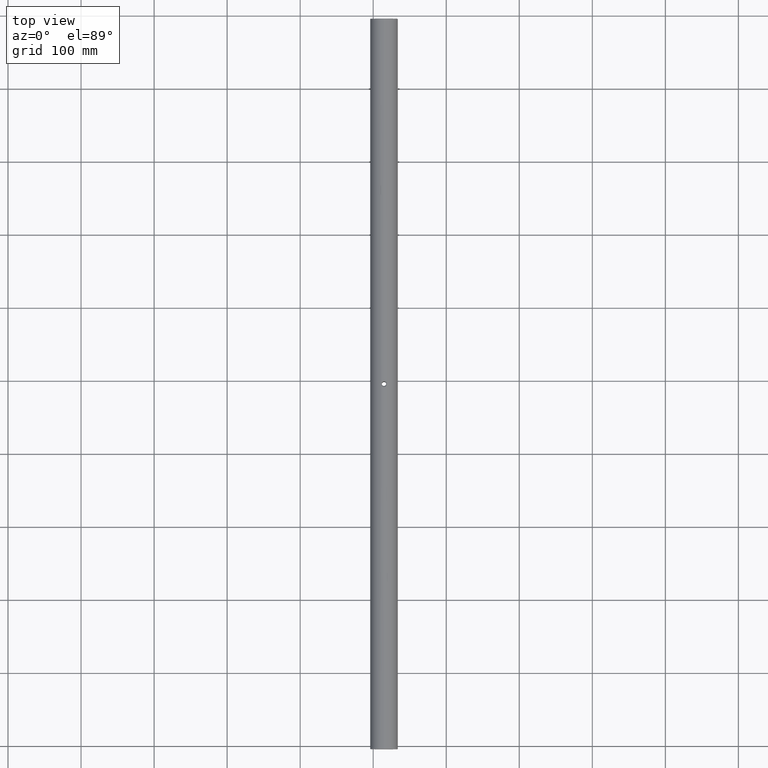
[diagram: clean part render]
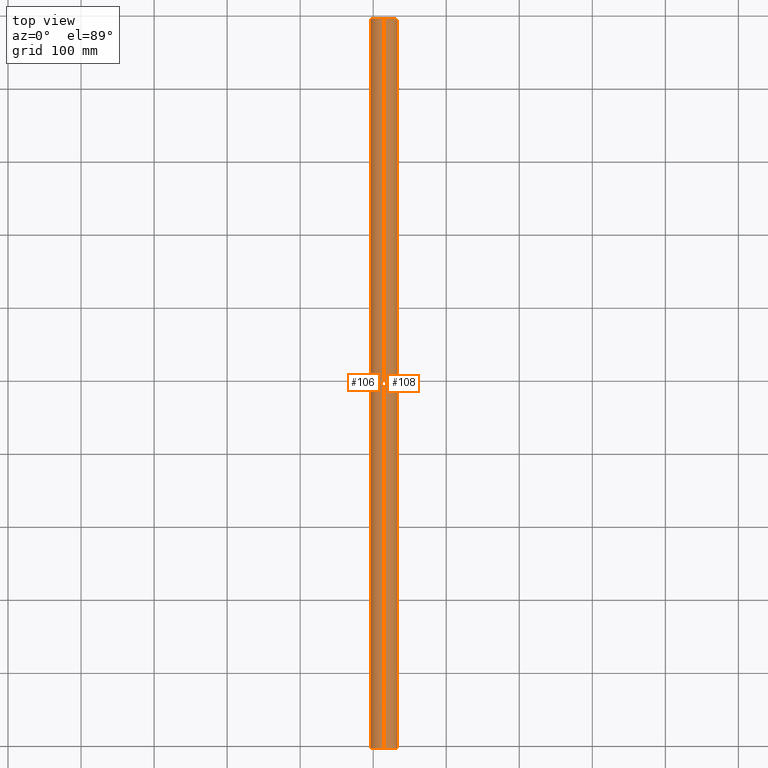
[diagram: same view with one multi-face feature highlighted, each face labeled with its STEP entity id]
A machine part, top view. The highlighted faces form ONE feature: a constant-radius fillet chain: 2 tangent blend faces with common blend radius 19 mm. The faces share edges in the B-rep.
Their STEP definitions:
[1] entity #108 (Cylinder):
#5 = CARTESIAN_POINT ( 'NONE',  ( -81.52612773688034054, -3.217498801581724077, 381.3638222746528754 ) ) ;
#7 = ORIENTED_EDGE ( 'NONE', *, *, #139, .T. ) ;
#11 = CARTESIAN_POINT ( 'NONE',  ( -84.69972560880194123, -8.430702186240790041, 418.9944016194976939 ) ) ;
#17 = CARTESIAN_POINT ( 'NONE',  ( -82.64087668775829343, -1.167056617506569971, 381.1759880288403792 ) ) ;
#21 = CARTESIAN_POINT ( 'NONE',  ( -83.24438980785724596, -7.856924346119599889, 381.1025380199827737 ) ) ;
#26 = CARTESIAN_POINT ( 'NONE',  ( -81.41341497436532393, -4.524701080299160516, 418.6133848591761648 ) ) ;
#42 = CARTESIAN_POINT ( 'NONE',  ( -81.52508446630257311, -5.300719478809650553, 381.3640301049963455 ) ) ;
#47 = CARTESIAN_POINT ( 'NONE',  ( -82.64087668775827922, -1.167056617506570415, 418.8240119711596208 ) ) ;
#57 = CARTESIAN_POINT ( 'NONE',  ( -85.22679983354142053, -0.06133999167429866894, 419.0000000000000568 ) ) ;
#61 = ORIENTED_EDGE ( 'NONE', *, *, #865, .F. ) ;
#64 = CARTESIAN_POINT ( 'NONE',  ( -85.22679983354142053, 495.2386600083257235, 381.0000000000000000 ) ) ;
#65 = CARTESIAN_POINT ( 'NONE',  ( -81.41341497436532393, -4.261339991674277350, 381.3866151408238920 ) ) ;
#83 = CARTESIAN_POINT ( 'NONE',  ( -82.14497683168241338, -1.778754477084883101, 381.2511338613114162 ) ) ;
#88 = ORIENTED_EDGE ( 'NONE', *, *, #723, .F. ) ;
#91 = CARTESIAN_POINT ( 'NONE',  ( -83.24199987212081453, -0.6676668308104372063, 381.1028212990075872 ) ) ;
#95 = CARTESIAN_POINT ( 'NONE',  ( -85.22679983354142053, -8.461339991674268646, 419.0000000000000568 ) ) ;
#99 = CARTESIAN_POINT ( 'NONE',  ( -82.63814515825626472, -7.352595677616392322, 418.8236191524364926 ) ) ;
#108 = ADVANCED_FACE ( 'NONE', ( #190 ), #906, .T. ) ;
#112 = LINE ( 'NONE', #265, #194 ) ;
#113 = VERTEX_POINT ( 'NONE', #627 ) ;
#115 = CARTESIAN_POINT ( 'NONE',  ( -85.22679983354142053, 495.7386600083257235, 400.0000000000000000 ) ) ;
#125 = CARTESIAN_POINT ( 'NONE',  ( -83.24199987212080032, -0.6676668308104377614, 418.8971787009924697 ) ) ;
#134 = LINE ( 'NONE', #769, #201 ) ;
#139 = EDGE_CURVE ( 'NONE', #113, #585, #112, .T. ) ;
#140 = DIRECTION ( 'NONE',  ( -0.0000000000000000000, -1.000000000000000000, -0.0000000000000000000 ) ) ;
#142 = ORIENTED_EDGE ( 'NONE', *, *, #386, .T. ) ;
#154 = ORIENTED_EDGE ( 'NONE', *, *, #329, .T. ) ;
#177 = AXIS2_PLACEMENT_3D ( 'NONE', #878, #221, #519 ) ;
#188 = CARTESIAN_POINT ( 'NONE',  ( -81.41341497436532393, -4.261339991674279126, 418.6133848591761648 ) ) ;
#190 = FACE_OUTER_BOUND ( 'NONE', #272, .T. ) ;
#194 = VECTOR ( 'NONE', #402, 1000.000000000000000 ) ;
#201 = VECTOR ( 'NONE', #852, 1000.000000000000000 ) ;
#202 = CARTESIAN_POINT ( 'NONE',  ( -82.29571650229409840, -1.565921010254242685, 418.7733634629371409 ) ) ;
#221 = DIRECTION ( 'NONE',  ( -0.0000000000000000000, -1.000000000000000000, -0.0000000000000000000 ) ) ;
#234 = CARTESIAN_POINT ( 'NONE',  ( -83.46511704992532543, -0.5280370949836370453, 381.0803408399271461 ) ) ;
#237 = CARTESIAN_POINT ( 'NONE',  ( -81.41341497436532393, -4.261339991674279126, 418.6133848591761648 ) ) ;
#239 = CARTESIAN_POINT ( 'NONE',  ( -82.82757549099136440, -7.533607839044134558, 418.8490779973516851 ) ) ;
#247 = VERTEX_POINT ( 'NONE', #497 ) ;
#250 = DIRECTION ( 'NONE',  ( -0.0000000000000000000, -1.000000000000000000, -0.0000000000000000000 ) ) ;
#262 = CARTESIAN_POINT ( 'NONE',  ( -81.43639937781144056, -3.732814026306843225, 418.6181352063767918 ) ) ;
#265 = CARTESIAN_POINT ( 'NONE',  ( -85.22679983354142053, 495.7386600083257235, 419.0000000000000568 ) ) ;
#272 = EDGE_LOOP ( 'NONE', ( #633, #702, #61, #698, #7, #879, #383, #142, #154, #88 ) ) ;
#274 = CARTESIAN_POINT ( 'NONE',  ( -85.22679983354142053, 495.7386600083257235, 381.0000000000000000 ) ) ;
#279 = B_SPLINE_CURVE_WITH_KNOTS ( 'NONE', 3,
 ( #188, #940, #262, #775, #410, #355, #699, #424, #202, #47, #779, #125, #862, #568, #564, #494, #845, #57 ),
 .UNSPECIFIED., .F., .F.,
 ( 4, 2, 2, 2, 2, 2, 2, 2, 4 ),
 ( 0.01002925114519557376, 0.01081737704504791807, 0.01160550294490026065, 0.01239362884475260496, 0.01318175474460494753, 0.01396988064445729011, 0.01475800654430963268, 0.01554613244416197526, 0.01633425834401431784 ),
 .UNSPECIFIED. ) ;
#281 = CARTESIAN_POINT ( 'NONE',  ( -85.22679983354142053, -0.06133999167429866894, 419.0000000000000568 ) ) ;
#285 = VERTEX_POINT ( 'NONE', #799 ) ;
#298 = B_SPLINE_CURVE_WITH_KNOTS ( 'NONE', 3,
 ( #65, #644, #937, #5, #668, #369, #374, #83, #534, #17, #661, #91, #234, #682, #744, #387, #817, #306 ),
 .UNSPECIFIED., .F., .F.,
 ( 4, 2, 2, 2, 2, 2, 2, 2, 4 ),
 ( 0.01002925114519557549, 0.01081737704504791807, 0.01160550294490026065, 0.01239362884475260496, 0.01318175474460494753, 0.01396988064445729011, 0.01475800654430963268, 0.01554613244416197526, 0.01633425834401431784 ),
 .UNSPECIFIED. ) ;
#299 = EDGE_CURVE ( 'NONE', #680, #730, #873, .T. ) ;
#306 = CARTESIAN_POINT ( 'NONE',  ( -85.22679983354142053, -0.06133999167429866894, 381.0000000000000000 ) ) ;
#311 = CARTESIAN_POINT ( 'NONE',  ( -82.82757549099136440, -7.533607839044134558, 381.1509220026484286 ) ) ;
#317 = CARTESIAN_POINT ( 'NONE',  ( -81.59285872774556481, -5.558021363143371474, 418.6494685149854149 ) ) ;
#329 = EDGE_CURVE ( 'NONE', #403, #285, #298, .T. ) ;
#332 = VERTEX_POINT ( 'NONE', #883 ) ;
#354 = EDGE_CURVE ( 'NONE', #113, #740, #932, .T. ) ;
#355 = CARTESIAN_POINT ( 'NONE',  ( -81.77187972696634688, -2.468561370532886379, 418.6834641745472823 ) ) ;
#359 = CIRCLE ( 'NONE', #631, 19.00000000000001776 ) ;
#369 = CARTESIAN_POINT ( 'NONE',  ( -81.77187972696631846, -2.468561370532884602, 381.3165358254529451 ) ) ;
#374 = CARTESIAN_POINT ( 'NONE',  ( -81.88335953815429491, -2.229144387579305775, 381.2960158925316705 ) ) ;
#378 = CARTESIAN_POINT ( 'NONE',  ( -85.22679983354142053, -503.7613399916743901, 419.0000000000000568 ) ) ;
#383 = ORIENTED_EDGE ( 'NONE', *, *, #781, .F. ) ;
#386 = EDGE_CURVE ( 'NONE', #332, #403, #500, .T. ) ;
#387 = CARTESIAN_POINT ( 'NONE',  ( -84.69707466841040855, -0.09239770115273913953, 381.0056742590844578 ) ) ;
#389 = CARTESIAN_POINT ( 'NONE',  ( -82.14309753980985818, -6.741247472261910012, 418.7485603540634429 ) ) ;
#402 = DIRECTION ( 'NONE',  ( -0.0000000000000000000, -1.000000000000000000, -0.0000000000000000000 ) ) ;
#403 = VERTEX_POINT ( 'NONE', #686 ) ;
#410 = CARTESIAN_POINT ( 'NONE',  ( -81.59279953389886941, -2.964568543362574360, 418.6494597328340888 ) ) ;
#415 = CARTESIAN_POINT ( 'NONE',  ( -85.22679983354142053, -503.7613399916743901, 400.0000000000000000 ) ) ;
#424 = CARTESIAN_POINT ( 'NONE',  ( -82.14497683168238495, -1.778754477084894647, 418.7488661386886406 ) ) ;
#433 = VECTOR ( 'NONE', #791, 1000.000000000000000 ) ;
#451 = CARTESIAN_POINT ( 'NONE',  ( -84.69972560880194123, -8.430702186240790041, 381.0055983805024198 ) ) ;
#458 = CARTESIAN_POINT ( 'NONE',  ( -84.18986350246656514, -8.312315706571794749, 381.0266011698889201 ) ) ;
#461 = CARTESIAN_POINT ( 'NONE',  ( -81.88059113652985843, -6.288202399889226690, 381.2965077447454973 ) ) ;
#465 = CARTESIAN_POINT ( 'NONE',  ( -83.93808702169893365, -8.222923423920713404, 418.9577223027167747 ) ) ;
#485 = CARTESIAN_POINT ( 'NONE',  ( -85.22679983354142053, 495.7386600083257235, 419.0000000000000568 ) ) ;
#487 = DIRECTION ( 'NONE',  ( 0.0000000000000000000, 0.0000000000000000000, -1.000000000000000000 ) ) ;
#492 = VECTOR ( 'NONE', #140, 1000.000000000000000 ) ;
#494 = CARTESIAN_POINT ( 'NONE',  ( -84.69707466841043697, -0.09239770115273915341, 418.9943257409157127 ) ) ;
#497 = CARTESIAN_POINT ( 'NONE',  ( -85.22679983354142053, -503.7613399916743901, 381.0000000000000000 ) ) ;
#500 = B_SPLINE_CURVE_WITH_KNOTS ( 'NONE', 3,
 ( #522, #736, #451, #458, #749, #605, #21, #311, #898, #828, #609, #461, #831, #550, #42, #919, #838, #700 ),
 .UNSPECIFIED., .F., .F.,
 ( 4, 2, 2, 2, 2, 2, 2, 2, 4 ),
 ( 0.003733624680294762854, 0.004520577988407363350, 0.005307531296519963845, 0.006094484604632565208, 0.006881437912745166571, 0.007668391220857769669, 0.008455344528970371032, 0.009242297837082972395, 0.01002925114519557549 ),
 .UNSPECIFIED. ) ;
#501 = LINE ( 'NONE', #485, #433 ) ;
#502 = AXIS2_PLACEMENT_3D ( 'NONE', #115, #250, #487 ) ;
#505 = EDGE_CURVE ( 'NONE', #585, #247, #359, .T. ) ;
#519 = DIRECTION ( 'NONE',  ( 0.0000000000000000000, 0.0000000000000000000, 1.000000000000000000 ) ) ;
#522 = CARTESIAN_POINT ( 'NONE',  ( -85.22679983354142053, -8.461339991674268646, 381.0000000000000000 ) ) ;
#534 = CARTESIAN_POINT ( 'NONE',  ( -82.29571650229409840, -1.565921010254241796, 381.2266365370629160 ) ) ;
#538 = CARTESIAN_POINT ( 'NONE',  ( -84.96243902164792416, -8.461339991674275751, 419.0000000000001137 ) ) ;
#550 = CARTESIAN_POINT ( 'NONE',  ( -81.59285872774556481, -5.558021363143366145, 381.3505314850146988 ) ) ;
#564 = CARTESIAN_POINT ( 'NONE',  ( -84.18753268678747759, -0.2111030241652349926, 418.9732691674435046 ) ) ;
#568 = CARTESIAN_POINT ( 'NONE',  ( -83.94119362236200743, -0.2983445582111095007, 418.9579599544148323 ) ) ;
#578 = CARTESIAN_POINT ( 'NONE',  ( -85.22679983354142053, 495.2386600083257235, 419.0000000000000568 ) ) ;
#585 = VERTEX_POINT ( 'NONE', #378 ) ;
#590 = CARTESIAN_POINT ( 'NONE',  ( -81.77082803723338600, -6.051458313143361245, 418.6832669197586370 ) ) ;
#594 = CARTESIAN_POINT ( 'NONE',  ( -82.29671814351611658, -6.957786961682561611, 418.7735023986901979 ) ) ;
#599 = CARTESIAN_POINT ( 'NONE',  ( -81.43586367851925445, -4.785232307264688068, 418.6180255036908306 ) ) ;
#605 = CARTESIAN_POINT ( 'NONE',  ( -83.46626106639050136, -7.995107640163255702, 381.0802611310913903 ) ) ;
#609 = CARTESIAN_POINT ( 'NONE',  ( -82.14309753980985818, -6.741247472261910012, 381.2514396459365571 ) ) ;
#627 = CARTESIAN_POINT ( 'NONE',  ( -85.22679983354142053, -8.461339991674268646, 419.0000000000000568 ) ) ;
#631 = AXIS2_PLACEMENT_3D ( 'NONE', #415, #690, #704 ) ;
#633 = ORIENTED_EDGE ( 'NONE', *, *, #299, .T. ) ;
#639 = VERTEX_POINT ( 'NONE', #281 ) ;
#642 = CARTESIAN_POINT ( 'NONE',  ( -81.41341497436532393, -4.261339991674279126, 418.6133848591761648 ) ) ;
#644 = CARTESIAN_POINT ( 'NONE',  ( -81.41341497436533814, -3.997586484548954822, 381.3866151408237783 ) ) ;
#661 = CARTESIAN_POINT ( 'NONE',  ( -82.83102515499486174, -0.9863390833895689935, 381.1505157249931699 ) ) ;
#668 = CARTESIAN_POINT ( 'NONE',  ( -81.59279953389886941, -2.964568543362572584, 381.3505402671659681 ) ) ;
#673 = CARTESIAN_POINT ( 'NONE',  ( -84.18986350246656514, -8.312315706571794749, 418.9733988301109093 ) ) ;
#680 = VERTEX_POINT ( 'NONE', #64 ) ;
#682 = CARTESIAN_POINT ( 'NONE',  ( -83.94119362236200743, -0.2983445582111096117, 381.0420400455853382 ) ) ;
#686 = CARTESIAN_POINT ( 'NONE',  ( -81.41341497436532393, -4.261339991674277350, 381.3866151408238920 ) ) ;
#690 = DIRECTION ( 'NONE',  ( 0.0000000000000000000, 1.000000000000000000, 0.0000000000000000000 ) ) ;
#698 = ORIENTED_EDGE ( 'NONE', *, *, #354, .F. ) ;
#699 = CARTESIAN_POINT ( 'NONE',  ( -81.88335953815429491, -2.229144387579318209, 418.7039841074685000 ) ) ;
#700 = CARTESIAN_POINT ( 'NONE',  ( -81.41341497436532393, -4.261339991674277350, 381.3866151408238920 ) ) ;
#702 = ORIENTED_EDGE ( 'NONE', *, *, #738, .T. ) ;
#704 = DIRECTION ( 'NONE',  ( 0.0000000000000000000, 0.0000000000000000000, 1.000000000000000000 ) ) ;
#723 = EDGE_CURVE ( 'NONE', #680, #285, #134, .T. ) ;
#730 = VERTEX_POINT ( 'NONE', #578 ) ;
#736 = CARTESIAN_POINT ( 'NONE',  ( -84.96243902164792416, -8.461339991674275751, 381.0000000000000568 ) ) ;
#738 = EDGE_CURVE ( 'NONE', #730, #639, #501, .T. ) ;
#740 = VERTEX_POINT ( 'NONE', #642 ) ;
#744 = CARTESIAN_POINT ( 'NONE',  ( -84.18753268678749180, -0.2111030241652349648, 381.0267308325566091 ) ) ;
#749 = CARTESIAN_POINT ( 'NONE',  ( -83.93808702169893365, -8.222923423920713404, 381.0422776972831116 ) ) ;
#769 = CARTESIAN_POINT ( 'NONE',  ( -85.22679983354142053, 495.7386600083257235, 381.0000000000000000 ) ) ;
#775 = CARTESIAN_POINT ( 'NONE',  ( -81.52612773688036896, -3.217498801581725854, 418.6361777253471814 ) ) ;
#779 = CARTESIAN_POINT ( 'NONE',  ( -82.83102515499484753, -0.9863390833895698817, 418.8494842750069438 ) ) ;
#781 = EDGE_CURVE ( 'NONE', #332, #247, #785, .T. ) ;
#785 = LINE ( 'NONE', #274, #492 ) ;
#791 = DIRECTION ( 'NONE',  ( -0.0000000000000000000, -1.000000000000000000, -0.0000000000000000000 ) ) ;
#799 = CARTESIAN_POINT ( 'NONE',  ( -85.22679983354142053, -0.06133999167429866894, 381.0000000000000000 ) ) ;
#812 = CARTESIAN_POINT ( 'NONE',  ( -81.88059113652985843, -6.288202399889226690, 418.7034922552546163 ) ) ;
#817 = CARTESIAN_POINT ( 'NONE',  ( -84.96393248785444996, -0.06133999167429707300, 381.0000000000000000 ) ) ;
#828 = CARTESIAN_POINT ( 'NONE',  ( -82.29671814351611658, -6.957786961682561611, 381.2264976013096884 ) ) ;
#831 = CARTESIAN_POINT ( 'NONE',  ( -81.77082803723338600, -6.051458313143355028, 381.3167330802414767 ) ) ;
#838 = CARTESIAN_POINT ( 'NONE',  ( -81.41341497436532393, -4.524701080299158740, 381.3866151408239489 ) ) ;
#845 = CARTESIAN_POINT ( 'NONE',  ( -84.96393248785446417, -0.06133999167429705912, 419.0000000000001705 ) ) ;
#852 = DIRECTION ( 'NONE',  ( -0.0000000000000000000, -1.000000000000000000, -0.0000000000000000000 ) ) ;
#862 = CARTESIAN_POINT ( 'NONE',  ( -83.46511704992533964, -0.5280370949836369343, 418.9196591600729107 ) ) ;
#865 = EDGE_CURVE ( 'NONE', #740, #639, #279, .T. ) ;
#873 = CIRCLE ( 'NONE', #177, 19.00000000000001776 ) ;
#878 = CARTESIAN_POINT ( 'NONE',  ( -85.22679983354142053, 495.2386600083257235, 400.0000000000000000 ) ) ;
#879 = ORIENTED_EDGE ( 'NONE', *, *, #505, .T. ) ;
#883 = CARTESIAN_POINT ( 'NONE',  ( -85.22679983354142053, -8.461339991674268646, 381.0000000000000000 ) ) ;
#887 = CARTESIAN_POINT ( 'NONE',  ( -81.52508446630257311, -5.300719478809653218, 418.6359698950037682 ) ) ;
#893 = CARTESIAN_POINT ( 'NONE',  ( -83.46626106639050136, -7.995107640163255702, 418.9197388689088370 ) ) ;
#898 = CARTESIAN_POINT ( 'NONE',  ( -82.63814515825626472, -7.352595677616392322, 381.1763808475635642 ) ) ;
#902 = CARTESIAN_POINT ( 'NONE',  ( -83.24438980785724596, -7.856924346119599889, 418.8974619800173400 ) ) ;
#906 = CYLINDRICAL_SURFACE ( 'NONE', #502, 19.00000000000001776 ) ;
#919 = CARTESIAN_POINT ( 'NONE',  ( -81.43586367851925445, -4.785232307264686291, 381.3819744963091694 ) ) ;
#932 = B_SPLINE_CURVE_WITH_KNOTS ( 'NONE', 3,
 ( #95, #538, #11, #673, #465, #893, #902, #239, #99, #594, #389, #812, #590, #317, #887, #599, #26, #237 ),
 .UNSPECIFIED., .F., .F.,
 ( 4, 2, 2, 2, 2, 2, 2, 2, 4 ),
 ( 0.003733624680294762854, 0.004520577988407363350, 0.005307531296519963845, 0.006094484604632564341, 0.006881437912745166571, 0.007668391220857767934, 0.008455344528970369297, 0.009242297837082972395, 0.01002925114519557376 ),
 .UNSPECIFIED. ) ;
#937 = CARTESIAN_POINT ( 'NONE',  ( -81.43639937781146898, -3.732814026306841892, 381.3818647936232082 ) ) ;
#940 = CARTESIAN_POINT ( 'NONE',  ( -81.41341497436532393, -3.997586484548957486, 418.6133848591761648 ) ) ;
[2] entity #106 (Cylinder):
#1 = CARTESIAN_POINT ( 'NONE',  ( -89.04018469271751712, -3.999029654920558841, 381.3866151408238920 ) ) ;
#10 = B_SPLINE_CURVE_WITH_KNOTS ( 'NONE', 3,
 ( #395, #545, #180, #469, #760, #111, #330, #400, #620, #913, #254, #798, #569, #356, #643, #90, #15, #580 ),
 .UNSPECIFIED., .F., .F.,
 ( 4, 2, 2, 2, 2, 2, 2, 2, 4 ),
 ( 0.02262406464777516613, 0.02341192012650424731, 0.02419977560523332849, 0.02498763108396241314, 0.02577548656269149432, 0.02656334204142057551, 0.02735119752014966016, 0.02813905299887874134, 0.02892690847760782252 ),
 .UNSPECIFIED. ) ;
#12 = CARTESIAN_POINT ( 'NONE',  ( -88.30889371447072733, -1.779107847670829301, 418.7488230436633785 ) ) ;
#15 = CARTESIAN_POINT ( 'NONE',  ( -85.49146371113677390, -8.461339991674272198, 419.0000000000001705 ) ) ;
#33 = ORIENTED_EDGE ( 'NONE', *, *, #89, .T. ) ;
#37 = EDGE_CURVE ( 'NONE', #639, #308, #899, .T. ) ;
#39 = CARTESIAN_POINT ( 'NONE',  ( -87.20501299645449933, -7.859601616013272007, 381.1021099489511244 ) ) ;
#50 = CARTESIAN_POINT ( 'NONE',  ( -85.75119431850812646, -8.431120250548380213, 381.0055227819794936 ) ) ;
#64 = CARTESIAN_POINT ( 'NONE',  ( -85.22679983354142053, 495.2386600083257235, 381.0000000000000000 ) ) ;
#73 = CARTESIAN_POINT ( 'NONE',  ( -89.04018469271751712, -4.261339991674283567, 381.3866151408238920 ) ) ;
#89 = EDGE_CURVE ( 'NONE', #730, #680, #151, .T. ) ;
#90 = CARTESIAN_POINT ( 'NONE',  ( -85.75119431850812646, -8.431120250548380213, 418.9944772180206769 ) ) ;
#96 = CARTESIAN_POINT ( 'NONE',  ( -89.04018469271751712, -4.261339991674283567, 418.6133848591761648 ) ) ;
#106 = ADVANCED_FACE ( 'NONE', ( #523 ), #452, .T. ) ;
#107 = CARTESIAN_POINT ( 'NONE',  ( -85.22679983354142053, 495.2386600083257235, 400.0000000000000000 ) ) ;
#111 = CARTESIAN_POINT ( 'NONE',  ( -88.68189959692058721, -6.053472744008438156, 418.6834286230944713 ) ) ;
#112 = LINE ( 'NONE', #265, #194 ) ;
#113 = VERTEX_POINT ( 'NONE', #627 ) ;
#127 = CARTESIAN_POINT ( 'NONE',  ( -89.04018469271751712, -4.261339991674283567, 381.3866151408238920 ) ) ;
#134 = LINE ( 'NONE', #769, #201 ) ;
#136 = CARTESIAN_POINT ( 'NONE',  ( -88.57090845425022962, -2.230408319438852871, 381.2961339358312216 ) ) ;
#139 = EDGE_CURVE ( 'NONE', #113, #585, #112, .T. ) ;
#140 = DIRECTION ( 'NONE',  ( -0.0000000000000000000, -1.000000000000000000, -0.0000000000000000000 ) ) ;
#147 = EDGE_CURVE ( 'NONE', #907, #332, #938, .T. ) ;
#149 = CARTESIAN_POINT ( 'NONE',  ( -85.48903342595741606, -0.06133999167429705912, 380.9999999999999432 ) ) ;
#151 = CIRCLE ( 'NONE', #264, 19.00000000000001776 ) ;
#164 = DIRECTION ( 'NONE',  ( -0.0000000000000000000, -1.000000000000000000, -0.0000000000000000000 ) ) ;
#169 = CARTESIAN_POINT ( 'NONE',  ( -88.86084895124396610, -2.964938769552044828, 418.6494481890263728 ) ) ;
#179 = EDGE_LOOP ( 'NONE', ( #408, #33, #377, #896, #314, #921, #571, #436, #207, #674 ) ) ;
#180 = CARTESIAN_POINT ( 'NONE',  ( -89.01782207825233684, -4.784939022142112641, 418.6180084472278509 ) ) ;
#184 = CARTESIAN_POINT ( 'NONE',  ( -88.86003986455601478, -5.560364975193093251, 381.3503944715658349 ) ) ;
#194 = VECTOR ( 'NONE', #402, 1000.000000000000000 ) ;
#199 = CARTESIAN_POINT ( 'NONE',  ( -88.30796467933343763, -6.745178320961991325, 381.2510173717518569 ) ) ;
#201 = VECTOR ( 'NONE', #852, 1000.000000000000000 ) ;
#207 = ORIENTED_EDGE ( 'NONE', *, *, #527, .F. ) ;
#224 = CARTESIAN_POINT ( 'NONE',  ( -87.21008987037792792, -0.6665384523181927534, 381.1026504008992788 ) ) ;
#241 = CARTESIAN_POINT ( 'NONE',  ( -86.26440072079715549, -0.2103516366053766184, 418.9733999019272801 ) ) ;
#246 = CARTESIAN_POINT ( 'NONE',  ( -87.21008987037792792, -0.6665384523181927534, 418.8973495991008917 ) ) ;
#247 = VERTEX_POINT ( 'NONE', #497 ) ;
#252 = EDGE_CURVE ( 'NONE', #285, #907, #861, .T. ) ;
#254 = CARTESIAN_POINT ( 'NONE',  ( -87.61973751830021229, -7.539048035020909921, 418.8498653824453868 ) ) ;
#255 = CARTESIAN_POINT ( 'NONE',  ( -86.98410511525524669, -7.996885633606630961, 381.0799701750693771 ) ) ;
#260 = CARTESIAN_POINT ( 'NONE',  ( -87.81196888986544025, -7.356176429533654471, 381.1758971842136248 ) ) ;
#264 = AXIS2_PLACEMENT_3D ( 'NONE', #107, #164, #818 ) ;
#265 = CARTESIAN_POINT ( 'NONE',  ( -85.22679983354142053, 495.7386600083257235, 419.0000000000000568 ) ) ;
#274 = CARTESIAN_POINT ( 'NONE',  ( -85.22679983354142053, 495.7386600083257235, 381.0000000000000000 ) ) ;
#276 = CARTESIAN_POINT ( 'NONE',  ( -88.15730954550808462, -1.565196067254975176, 381.2265485059697880 ) ) ;
#281 = CARTESIAN_POINT ( 'NONE',  ( -85.22679983354142053, -0.06133999167429866894, 419.0000000000000568 ) ) ;
#285 = VERTEX_POINT ( 'NONE', #799 ) ;
#300 = DIRECTION ( 'NONE',  ( 0.0000000000000000000, 0.0000000000000000000, 1.000000000000000000 ) ) ;
#307 = CARTESIAN_POINT ( 'NONE',  ( -86.98394057735728779, -0.5256534841595331686, 418.9200517613895727 ) ) ;
#308 = VERTEX_POINT ( 'NONE', #808 ) ;
#314 = ORIENTED_EDGE ( 'NONE', *, *, #147, .T. ) ;
#330 = CARTESIAN_POINT ( 'NONE',  ( -88.57188684336087192, -6.290580469037319489, 418.7036980113034588 ) ) ;
#332 = VERTEX_POINT ( 'NONE', #883 ) ;
#339 = CARTESIAN_POINT ( 'NONE',  ( -86.26127162816044347, -8.313090059122508535, 381.0264652089310289 ) ) ;
#340 = EDGE_CURVE ( 'NONE', #247, #585, #498, .T. ) ;
#346 = CARTESIAN_POINT ( 'NONE',  ( -88.68258810927235913, -2.470732174027440387, 381.3166984144028220 ) ) ;
#350 = CARTESIAN_POINT ( 'NONE',  ( -85.74900820764774778, -0.09101629208817690886, 381.0054266209082812 ) ) ;
#356 = CARTESIAN_POINT ( 'NONE',  ( -86.51381476393198966, -8.223524199725767758, 418.9578280137350816 ) ) ;
#357 = CARTESIAN_POINT ( 'NONE',  ( -86.26440072079715549, -0.2103516366053766184, 381.0266000980727767 ) ) ;
#366 = CARTESIAN_POINT ( 'NONE',  ( -87.81247192360183362, -1.166828721202192165, 381.1759550570734518 ) ) ;
#377 = ORIENTED_EDGE ( 'NONE', *, *, #723, .T. ) ;
#378 = CARTESIAN_POINT ( 'NONE',  ( -85.22679983354142053, -503.7613399916743901, 419.0000000000000568 ) ) ;
#381 = CARTESIAN_POINT ( 'NONE',  ( -87.62330431072487613, -0.9868626275845048257, 418.8494039038823757 ) ) ;
#395 = CARTESIAN_POINT ( 'NONE',  ( -89.04018469271751712, -4.261339991674283567, 418.6133848591761648 ) ) ;
#400 = CARTESIAN_POINT ( 'NONE',  ( -88.30796467933343763, -6.745178320961991325, 418.7489826282481999 ) ) ;
#402 = DIRECTION ( 'NONE',  ( -0.0000000000000000000, -1.000000000000000000, -0.0000000000000000000 ) ) ;
#407 = DIRECTION ( 'NONE',  ( -0.0000000000000000000, -1.000000000000000000, -0.0000000000000000000 ) ) ;
#408 = ORIENTED_EDGE ( 'NONE', *, *, #738, .F. ) ;
#421 = CARTESIAN_POINT ( 'NONE',  ( -88.92822251687863400, -5.302205923223622719, 381.3639714981914040 ) ) ;
#433 = VECTOR ( 'NONE', #791, 1000.000000000000000 ) ;
#436 = ORIENTED_EDGE ( 'NONE', *, *, #139, .F. ) ;
#447 = CARTESIAN_POINT ( 'NONE',  ( -85.22679983354142053, -503.7613399916743901, 400.0000000000000000 ) ) ;
#452 = CYLINDRICAL_SURFACE ( 'NONE', #807, 19.00000000000001776 ) ;
#469 = CARTESIAN_POINT ( 'NONE',  ( -88.92822251687863400, -5.302205923223622719, 418.6360285018084824 ) ) ;
#477 = CARTESIAN_POINT ( 'NONE',  ( -85.49146371113677390, -8.461339991674272198, 381.0000000000000000 ) ) ;
#485 = CARTESIAN_POINT ( 'NONE',  ( -85.22679983354142053, 495.7386600083257235, 419.0000000000000568 ) ) ;
#492 = VECTOR ( 'NONE', #140, 1000.000000000000000 ) ;
#497 = CARTESIAN_POINT ( 'NONE',  ( -85.22679983354142053, -503.7613399916743901, 381.0000000000000000 ) ) ;
#498 = CIRCLE ( 'NONE', #515, 19.00000000000001776 ) ;
#501 = LINE ( 'NONE', #485, #433 ) ;
#509 = CARTESIAN_POINT ( 'NONE',  ( -86.98394057735728779, -0.5256534841595331686, 381.0799482386107115 ) ) ;
#513 = CARTESIAN_POINT ( 'NONE',  ( -87.62330431072487613, -0.9868626275845048257, 381.1505960961178516 ) ) ;
#515 = AXIS2_PLACEMENT_3D ( 'NONE', #447, #541, #300 ) ;
#523 = FACE_OUTER_BOUND ( 'NONE', #179, .T. ) ;
#527 = EDGE_CURVE ( 'NONE', #308, #113, #10, .T. ) ;
#535 = CARTESIAN_POINT ( 'NONE',  ( -85.22679983354142053, -0.06133999167429866894, 419.0000000000000568 ) ) ;
#541 = DIRECTION ( 'NONE',  ( 0.0000000000000000000, 1.000000000000000000, 0.0000000000000000000 ) ) ;
#542 = CARTESIAN_POINT ( 'NONE',  ( -87.81247192360183362, -1.166828721202192165, 418.8240449429266050 ) ) ;
#545 = CARTESIAN_POINT ( 'NONE',  ( -89.04018469271750291, -4.524194045943173315, 418.6133848591762217 ) ) ;
#547 = CARTESIAN_POINT ( 'NONE',  ( -88.57188684336087192, -6.290580469037319489, 381.2963019886966549 ) ) ;
#561 = CARTESIAN_POINT ( 'NONE',  ( -85.22679983354142053, -8.461339991674268646, 381.0000000000000000 ) ) ;
#569 = CARTESIAN_POINT ( 'NONE',  ( -86.98410511525524669, -7.996885633606630961, 418.9200298249307366 ) ) ;
#571 = ORIENTED_EDGE ( 'NONE', *, *, #340, .T. ) ;
#575 = CARTESIAN_POINT ( 'NONE',  ( -88.92749338337961262, -3.217524007279799481, 381.3638264625174088 ) ) ;
#578 = CARTESIAN_POINT ( 'NONE',  ( -85.22679983354142053, 495.2386600083257235, 419.0000000000000568 ) ) ;
#580 = CARTESIAN_POINT ( 'NONE',  ( -85.22679983354142053, -8.461339991674268646, 419.0000000000000568 ) ) ;
#585 = VERTEX_POINT ( 'NONE', #378 ) ;
#587 = CARTESIAN_POINT ( 'NONE',  ( -88.86084895124396610, -2.964938769552044828, 381.3505518109733430 ) ) ;
#600 = CARTESIAN_POINT ( 'NONE',  ( -88.15730954550808462, -1.565196067254975176, 418.7734514940302688 ) ) ;
#606 = CARTESIAN_POINT ( 'NONE',  ( -89.01727933074084831, -3.733366076984472315, 418.6181191867033817 ) ) ;
#612 = CARTESIAN_POINT ( 'NONE',  ( -89.01782207825233684, -4.784939022142112641, 381.3819915527722060 ) ) ;
#616 = CARTESIAN_POINT ( 'NONE',  ( -88.68189959692058721, -6.053472744008438156, 381.3165713769054150 ) ) ;
#620 = CARTESIAN_POINT ( 'NONE',  ( -88.15440500365676257, -6.961092752758728963, 418.7738934117829217 ) ) ;
#627 = CARTESIAN_POINT ( 'NONE',  ( -85.22679983354142053, -8.461339991674268646, 419.0000000000000568 ) ) ;
#639 = VERTEX_POINT ( 'NONE', #281 ) ;
#643 = CARTESIAN_POINT ( 'NONE',  ( -86.26127162816044347, -8.313090059122508535, 418.9735347910690848 ) ) ;
#649 = CARTESIAN_POINT ( 'NONE',  ( -89.01727933074084831, -3.733366076984472315, 381.3818808132967320 ) ) ;
#658 = CARTESIAN_POINT ( 'NONE',  ( -88.30889371447072733, -1.779107847670829301, 381.2511769563365078 ) ) ;
#674 = ORIENTED_EDGE ( 'NONE', *, *, #37, .F. ) ;
#679 = CARTESIAN_POINT ( 'NONE',  ( -86.51258600344370109, -0.2986253842693811777, 418.9579180337008211 ) ) ;
#680 = VERTEX_POINT ( 'NONE', #64 ) ;
#684 = CARTESIAN_POINT ( 'NONE',  ( -89.04018469271751712, -3.999029654920558841, 418.6133848591761648 ) ) ;
#710 = CARTESIAN_POINT ( 'NONE',  ( -85.22679983354142053, 495.7386600083257235, 400.0000000000000000 ) ) ;
#723 = EDGE_CURVE ( 'NONE', #680, #285, #134, .T. ) ;
#730 = VERTEX_POINT ( 'NONE', #578 ) ;
#732 = CARTESIAN_POINT ( 'NONE',  ( -86.51258600344370109, -0.2986253842693811777, 381.0420819662991789 ) ) ;
#738 = EDGE_CURVE ( 'NONE', #730, #639, #501, .T. ) ;
#750 = CARTESIAN_POINT ( 'NONE',  ( -88.92749338337961262, -3.217524007279799481, 418.6361735374826480 ) ) ;
#760 = CARTESIAN_POINT ( 'NONE',  ( -88.86003986455601478, -5.560364975193093251, 418.6496055284342788 ) ) ;
#769 = CARTESIAN_POINT ( 'NONE',  ( -85.22679983354142053, 495.7386600083257235, 381.0000000000000000 ) ) ;
#781 = EDGE_CURVE ( 'NONE', #332, #247, #785, .T. ) ;
#785 = LINE ( 'NONE', #274, #492 ) ;
#791 = DIRECTION ( 'NONE',  ( -0.0000000000000000000, -1.000000000000000000, -0.0000000000000000000 ) ) ;
#798 = CARTESIAN_POINT ( 'NONE',  ( -87.20501299645449933, -7.859601616013272007, 418.8978900510489325 ) ) ;
#799 = CARTESIAN_POINT ( 'NONE',  ( -85.22679983354142053, -0.06133999167429866894, 381.0000000000000000 ) ) ;
#807 = AXIS2_PLACEMENT_3D ( 'NONE', #710, #407, #914 ) ;
#808 = CARTESIAN_POINT ( 'NONE',  ( -89.04018469271751712, -4.261339991674283567, 418.6133848591761648 ) ) ;
#818 = DIRECTION ( 'NONE',  ( 0.0000000000000000000, 0.0000000000000000000, 1.000000000000000000 ) ) ;
#826 = CARTESIAN_POINT ( 'NONE',  ( -88.57090845425022962, -2.230408319438852871, 418.7038660641689489 ) ) ;
#829 = CARTESIAN_POINT ( 'NONE',  ( -88.68258810927235913, -2.470732174027440387, 418.6833015855973485 ) ) ;
#837 = CARTESIAN_POINT ( 'NONE',  ( -88.15440500365676257, -6.961092752758728963, 381.2261065882171351 ) ) ;
#852 = DIRECTION ( 'NONE',  ( -0.0000000000000000000, -1.000000000000000000, -0.0000000000000000000 ) ) ;
#854 = CARTESIAN_POINT ( 'NONE',  ( -89.04018469271750291, -4.524194045943173315, 381.3866151408239489 ) ) ;
#861 = B_SPLINE_CURVE_WITH_KNOTS ( 'NONE', 3,
 ( #947, #149, #350, #357, #732, #509, #224, #513, #366, #276, #658, #136, #346, #587, #575, #649, #1, #871 ),
 .UNSPECIFIED., .F., .F.,
 ( 4, 2, 2, 2, 2, 2, 2, 2, 4 ),
 ( 0.01633425834401431784, 0.01712048413198442517, 0.01790670991995452904, 0.01869293570792463638, 0.01947916149589474372, 0.02026538728386484758, 0.02105161307183495145, 0.02183783885980505879, 0.02262406464777516613 ),
 .UNSPECIFIED. ) ;
#871 = CARTESIAN_POINT ( 'NONE',  ( -89.04018469271751712, -4.261339991674283567, 381.3866151408238920 ) ) ;
#883 = CARTESIAN_POINT ( 'NONE',  ( -85.22679983354142053, -8.461339991674268646, 381.0000000000000000 ) ) ;
#896 = ORIENTED_EDGE ( 'NONE', *, *, #252, .T. ) ;
#899 = B_SPLINE_CURVE_WITH_KNOTS ( 'NONE', 3,
 ( #535, #903, #900, #241, #679, #307, #246, #381, #542, #600, #12, #826, #829, #169, #750, #606, #684, #96 ),
 .UNSPECIFIED., .F., .F.,
 ( 4, 2, 2, 2, 2, 2, 2, 2, 4 ),
 ( 0.01633425834401431784, 0.01712048413198442517, 0.01790670991995452904, 0.01869293570792463638, 0.01947916149589474372, 0.02026538728386484758, 0.02105161307183495145, 0.02183783885980505879, 0.02262406464777516613 ),
 .UNSPECIFIED. ) ;
#900 = CARTESIAN_POINT ( 'NONE',  ( -85.74900820764774778, -0.09101629208817690886, 418.9945733790917757 ) ) ;
#903 = CARTESIAN_POINT ( 'NONE',  ( -85.48903342595741606, -0.06133999167429705912, 419.0000000000001705 ) ) ;
#907 = VERTEX_POINT ( 'NONE', #73 ) ;
#911 = CARTESIAN_POINT ( 'NONE',  ( -86.51381476393198966, -8.223524199725767758, 381.0421719862650889 ) ) ;
#913 = CARTESIAN_POINT ( 'NONE',  ( -87.81196888986544025, -7.356176429533654471, 418.8241028157862615 ) ) ;
#914 = DIRECTION ( 'NONE',  ( 0.0000000000000000000, 0.0000000000000000000, -1.000000000000000000 ) ) ;
#920 = CARTESIAN_POINT ( 'NONE',  ( -87.61973751830021229, -7.539048035020909921, 381.1501346175546701 ) ) ;
#921 = ORIENTED_EDGE ( 'NONE', *, *, #781, .T. ) ;
#938 = B_SPLINE_CURVE_WITH_KNOTS ( 'NONE', 3,
 ( #127, #854, #612, #421, #184, #616, #547, #199, #837, #260, #920, #39, #255, #911, #339, #50, #477, #561 ),
 .UNSPECIFIED., .F., .F.,
 ( 4, 2, 2, 2, 2, 2, 2, 2, 4 ),
 ( 0.02262406464777516613, 0.02341192012650424731, 0.02419977560523332849, 0.02498763108396241314, 0.02577548656269149432, 0.02656334204142057551, 0.02735119752014966016, 0.02813905299887874134, 0.02892690847760782252 ),
 .UNSPECIFIED. ) ;
#947 = CARTESIAN_POINT ( 'NONE',  ( -85.22679983354142053, -0.06133999167429866894, 381.0000000000000000 ) ) ;